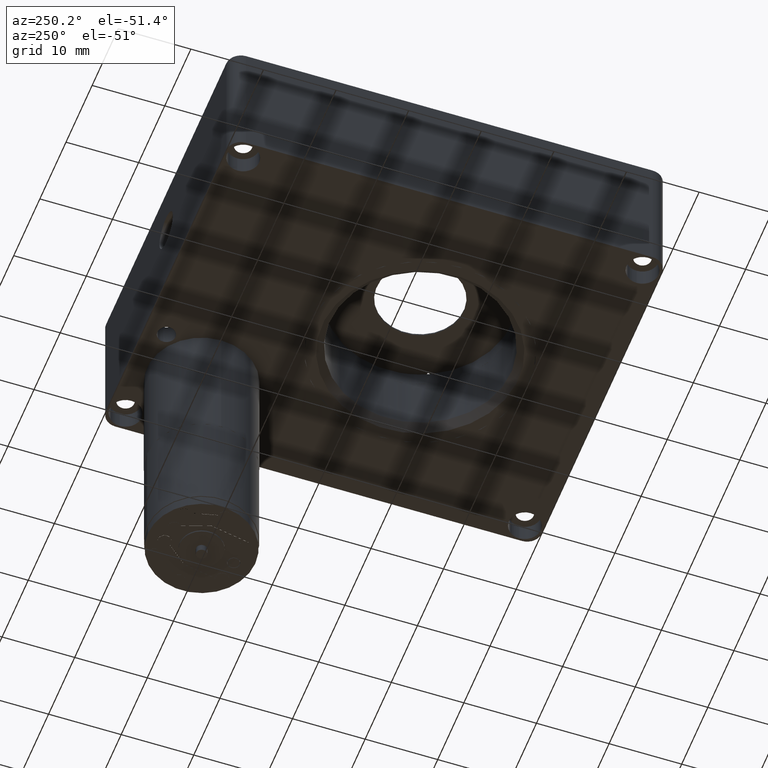
[diagram: clean part render]
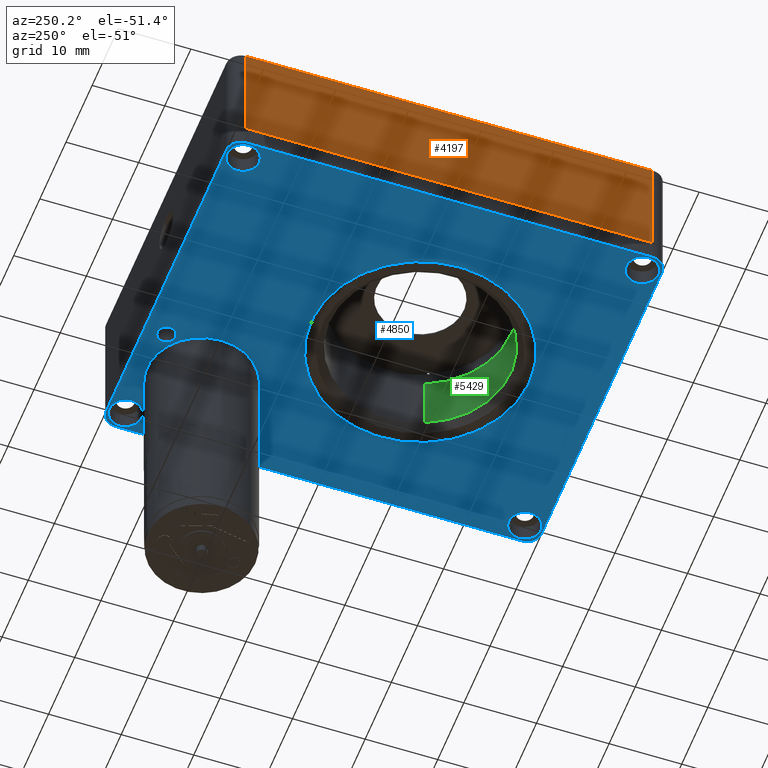
[diagram: same view with three faces highlighted in distinct colors, each labeled with its STEP entity id]
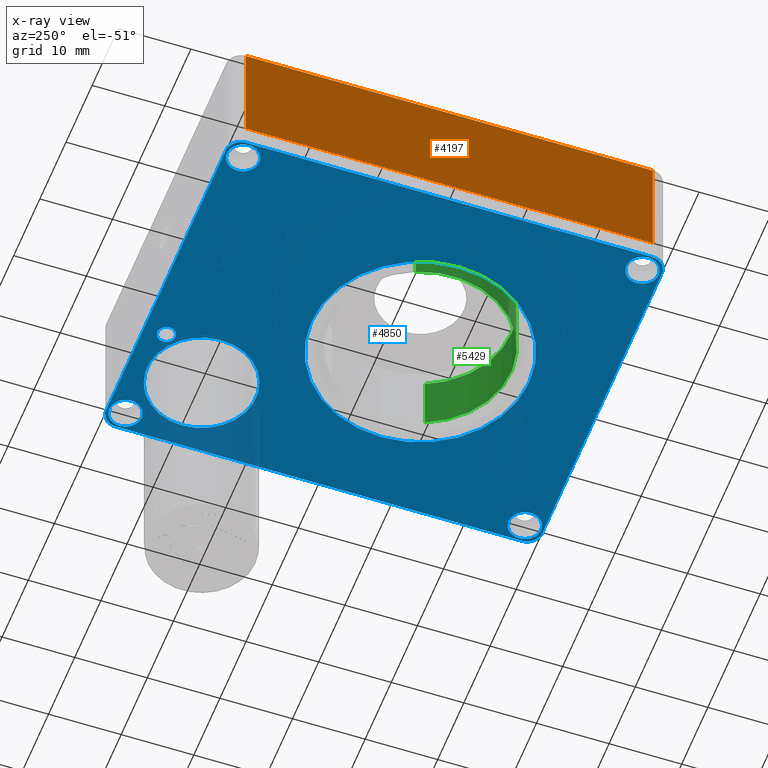
[diagram: x-ray of the same camera — body ghosted, the three highlighted faces saturated]
A machine part, auxiliary view with three faces highlighted in distinct colors.
The next image is the same camera in x-ray (body ghosted, the three faces saturated) — at least one of them is partly hidden behind the body in this view.
Their STEP definitions:

[orange] entity #4197 — the highlighted planar face has unit normal (1, 0, 0).
#184 = VERTEX_POINT ( 'NONE', #3064 ) ;
#311 = LINE ( 'NONE', #5721, #6033 ) ;
#624 = ORIENTED_EDGE ( 'NONE', *, *, #5514, .T. ) ;
#771 = EDGE_CURVE ( 'NONE', #3259, #6083, #1174, .T. ) ;
#958 = CARTESIAN_POINT ( 'NONE',  ( 0.0000000000000000000, 0.0000000000000000000, 15.00000000000000000 ) ) ;
#1001 = CARTESIAN_POINT ( 'NONE',  ( 0.0000000000000000000, 0.0000000000000000000, 0.0000000000000000000 ) ) ;
#1009 = CARTESIAN_POINT ( 'NONE',  ( 0.0000000000000000000, 57.99999999999999300, 15.00000000000000000 ) ) ;
#1104 = CARTESIAN_POINT ( 'NONE',  ( 0.0000000000000000000, 2.000000000000000000, 0.0000000000000000000 ) ) ;
#1174 = LINE ( 'NONE', #4286, #4048 ) ;
#1316 = ORIENTED_EDGE ( 'NONE', *, *, #1430, .F. ) ;
#1411 = VERTEX_POINT ( 'NONE', #1675 ) ;
#1430 = EDGE_CURVE ( 'NONE', #184, #6083, #311, .T. ) ;
#1567 = DIRECTION ( 'NONE',  ( -0.0000000000000000000, -1.000000000000000000, -0.0000000000000000000 ) ) ;
#1675 = CARTESIAN_POINT ( 'NONE',  ( 0.0000000000000000000, 57.99999999999999300, 0.0000000000000000000 ) ) ;
#1698 = CARTESIAN_POINT ( 'NONE',  ( 0.0000000000000000000, 2.000000000000000000, 15.00000000000000000 ) ) ;
#2766 = LINE ( 'NONE', #1001, #6949 ) ;
#3064 = CARTESIAN_POINT ( 'NONE',  ( 0.0000000000000000000, 57.99999999999999300, 15.00000000000000000 ) ) ;
#3259 = VERTEX_POINT ( 'NONE', #1104 ) ;
#3322 = DIRECTION ( 'NONE',  ( -0.0000000000000000000, -0.0000000000000000000, 1.000000000000000000 ) ) ;
#3418 = ORIENTED_EDGE ( 'NONE', *, *, #771, .T. ) ;
#3735 = FACE_OUTER_BOUND ( 'NONE', #4145, .T. ) ;
#3844 = DIRECTION ( 'NONE',  ( 0.0000000000000000000, 0.0000000000000000000, -1.000000000000000000 ) ) ;
#4048 = VECTOR ( 'NONE', #3322, 1000.000000000000000 ) ;
#4145 = EDGE_LOOP ( 'NONE', ( #624, #3418, #1316, #4814 ) ) ;
#4197 = ADVANCED_FACE ( 'NONE', ( #3735 ), #4227, .F. ) ;
#4227 = PLANE ( 'NONE',  #5326 ) ;
#4286 = CARTESIAN_POINT ( 'NONE',  ( 0.0000000000000000000, 2.000000000000000000, 15.00000000000000000 ) ) ;
#4303 = DIRECTION ( 'NONE',  ( 1.000000000000000000, 0.0000000000000000000, 0.0000000000000000000 ) ) ;
#4814 = ORIENTED_EDGE ( 'NONE', *, *, #5713, .T. ) ;
#5326 = AXIS2_PLACEMENT_3D ( 'NONE', #958, #4303, #6569 ) ;
#5514 = EDGE_CURVE ( 'NONE', #1411, #3259, #2766, .T. ) ;
#5713 = EDGE_CURVE ( 'NONE', #184, #1411, #5967, .T. ) ;
#5721 = CARTESIAN_POINT ( 'NONE',  ( 0.0000000000000000000, 0.0000000000000000000, 15.00000000000000000 ) ) ;
#5967 = LINE ( 'NONE', #1009, #6860 ) ;
#6033 = VECTOR ( 'NONE', #6080, 1000.000000000000000 ) ;
#6080 = DIRECTION ( 'NONE',  ( -0.0000000000000000000, -1.000000000000000000, -0.0000000000000000000 ) ) ;
#6083 = VERTEX_POINT ( 'NONE', #1698 ) ;
#6569 = DIRECTION ( 'NONE',  ( 0.0000000000000000000, 0.0000000000000000000, -1.000000000000000000 ) ) ;
#6860 = VECTOR ( 'NONE', #3844, 1000.000000000000000 ) ;
#6949 = VECTOR ( 'NONE', #1567, 1000.000000000000000 ) ;

[blue] entity #4850 — the highlighted planar face has unit normal (0, -0, 1).
#16 = CARTESIAN_POINT ( 'NONE',  ( 39.39999999999982800, 49.94153162899191000, -3.000000000000000000 ) ) ;
#29 = AXIS2_PLACEMENT_3D ( 'NONE', #1120, #3338, #1147 ) ;
#32 = ORIENTED_EDGE ( 'NONE', *, *, #513, .F. ) ;
#49 = LINE ( 'NONE', #486, #7019 ) ;
#62 = DIRECTION ( 'NONE',  ( -0.0000000000000000000, 0.0000000000000000000, -1.000000000000000000 ) ) ;
#74 = EDGE_CURVE ( 'NONE', #5563, #6245, #2848, .T. ) ;
#158 = VERTEX_POINT ( 'NONE', #322 ) ;
#196 = EDGE_LOOP ( 'NONE', ( #4342, #4413 ) ) ;
#236 = CARTESIAN_POINT ( 'NONE',  ( 49.99999999999997200, -3.469446951953614200E-015, -3.000000000000000000 ) ) ;
#279 = ORIENTED_EDGE ( 'NONE', *, *, #764, .F. ) ;
#283 = AXIS2_PLACEMENT_3D ( 'NONE', #6624, #490, #6530 ) ;
#303 = CIRCLE ( 'NONE', #29, 2.000000000000001800 ) ;
#304 = VERTEX_POINT ( 'NONE', #1493 ) ;
#319 = CIRCLE ( 'NONE', #2007, 2.225000000000005000 ) ;
#322 = CARTESIAN_POINT ( 'NONE',  ( 31.89999999999983200, 49.94153162899191000, -3.000000000000000000 ) ) ;
#355 = VERTEX_POINT ( 'NONE', #535 ) ;
#466 = VERTEX_POINT ( 'NONE', #3400 ) ;
#478 = EDGE_CURVE ( 'NONE', #6245, #5563, #3017, .T. ) ;
#486 = CARTESIAN_POINT ( 'NONE',  ( 49.99999999999997200, 60.00000000000000000, -3.000000000000000000 ) ) ;
#490 = DIRECTION ( 'NONE',  ( 0.0000000000000000000, -0.0000000000000000000, 1.000000000000000000 ) ) ;
#495 = AXIS2_PLACEMENT_3D ( 'NONE', #5335, #3265, #5878 ) ;
#513 = EDGE_CURVE ( 'NONE', #2300, #6088, #6389, .T. ) ;
#514 = VERTEX_POINT ( 'NONE', #3928 ) ;
#535 = CARTESIAN_POINT ( 'NONE',  ( 49.72499999999995200, 2.499999999999992500, -3.000000000000000000 ) ) ;
#548 = DIRECTION ( 'NONE',  ( -0.0000000000000000000, -1.000000000000000000, -0.0000000000000000000 ) ) ;
#607 = CARTESIAN_POINT ( 'NONE',  ( 47.99999999999997200, 60.00000000000000000, -3.000000000000000000 ) ) ;
#622 = CARTESIAN_POINT ( 'NONE',  ( 47.99999999999997200, 57.99999999999999300, -3.000000000000000000 ) ) ;
#764 = EDGE_CURVE ( 'NONE', #2680, #6696, #49, .T. ) ;
#822 = CARTESIAN_POINT ( 'NONE',  ( 45.27499999999994200, 2.499999999999992000, -3.000000000000000000 ) ) ;
#825 = EDGE_CURVE ( 'NONE', #5733, #514, #1271, .T. ) ;
#943 = VERTEX_POINT ( 'NONE', #3468 ) ;
#1057 = ORIENTED_EDGE ( 'NONE', *, *, #2685, .F. ) ;
#1084 = DIRECTION ( 'NONE',  ( -1.000000000000000000, -2.081668171172168500E-016, 0.0000000000000000000 ) ) ;
#1120 = CARTESIAN_POINT ( 'NONE',  ( 47.99999999999997200, 1.999999999999994900, -3.000000000000000000 ) ) ;
#1139 = CARTESIAN_POINT ( 'NONE',  ( 49.99999999999997200, 57.99999999999999300, -3.000000000000000000 ) ) ;
#1142 = EDGE_LOOP ( 'NONE', ( #6002, #1057 ) ) ;
#1147 = DIRECTION ( 'NONE',  ( 1.000000000000000000, 0.0000000000000000000, 0.0000000000000000000 ) ) ;
#1192 = DIRECTION ( 'NONE',  ( -0.0000000000000000000, 0.0000000000000000000, -1.000000000000000000 ) ) ;
#1206 = VERTEX_POINT ( 'NONE', #1503 ) ;
#1261 = CIRCLE ( 'NONE', #4979, 2.225000000000005000 ) ;
#1271 = CIRCLE ( 'NONE', #3862, 15.00000000000000000 ) ;
#1282 = AXIS2_PLACEMENT_3D ( 'NONE', #3505, #5090, #3985 ) ;
#1318 = CARTESIAN_POINT ( 'NONE',  ( 0.2750000000000147900, 57.49999999999999300, -3.000000000000000000 ) ) ;
#1319 = DIRECTION ( 'NONE',  ( -1.000000000000000000, 0.0000000000000000000, 0.0000000000000000000 ) ) ;
#1334 = AXIS2_PLACEMENT_3D ( 'NONE', #5162, #1860, #1811 ) ;
#1460 = LINE ( 'NONE', #236, #6398 ) ;
#1493 = CARTESIAN_POINT ( 'NONE',  ( 46.89999999999982800, 49.94153162899191000, -3.000000000000000000 ) ) ;
#1503 = CARTESIAN_POINT ( 'NONE',  ( 49.99999999999997200, 1.999999999999994900, -3.000000000000000000 ) ) ;
#1536 = EDGE_CURVE ( 'NONE', #466, #6419, #2826, .T. ) ;
#1550 = CARTESIAN_POINT ( 'NONE',  ( 39.99999999999997900, 25.00000000000000000, -3.000000000000000000 ) ) ;
#1572 = EDGE_CURVE ( 'NONE', #2680, #2679, #2481, .T. ) ;
#1575 = FACE_BOUND ( 'NONE', #6809, .T. ) ;
#1599 = CIRCLE ( 'NONE', #2365, 1.250000000000001100 ) ;
#1677 = DIRECTION ( 'NONE',  ( 0.0000000000000000000, 0.0000000000000000000, -1.000000000000000000 ) ) ;
#1707 = DIRECTION ( 'NONE',  ( -0.0000000000000000000, -0.0000000000000000000, -1.000000000000000000 ) ) ;
#1725 = VECTOR ( 'NONE', #3049, 1000.000000000000000 ) ;
#1747 = FACE_BOUND ( 'NONE', #6527, .T. ) ;
#1753 = AXIS2_PLACEMENT_3D ( 'NONE', #6078, #2117, #4339 ) ;
#1766 = CARTESIAN_POINT ( 'NONE',  ( 4.725000000000017400, 57.49999999999999300, -3.000000000000000000 ) ) ;
#1802 = VERTEX_POINT ( 'NONE', #5706 ) ;
#1811 = DIRECTION ( 'NONE',  ( -1.000000000000000000, 0.0000000000000000000, 0.0000000000000000000 ) ) ;
#1831 = EDGE_CURVE ( 'NONE', #943, #1802, #1261, .T. ) ;
#1836 = DIRECTION ( 'NONE',  ( -0.0000000000000000000, -0.0000000000000000000, -1.000000000000000000 ) ) ;
#1850 = ORIENTED_EDGE ( 'NONE', *, *, #5124, .T. ) ;
#1860 = DIRECTION ( 'NONE',  ( 0.0000000000000000000, 0.0000000000000000000, -1.000000000000000000 ) ) ;
#1916 = FACE_OUTER_BOUND ( 'NONE', #4070, .T. ) ;
#1921 = ORIENTED_EDGE ( 'NONE', *, *, #2866, .F. ) ;
#1927 = VERTEX_POINT ( 'NONE', #2674 ) ;
#1932 = VERTEX_POINT ( 'NONE', #3815 ) ;
#1950 = CIRCLE ( 'NONE', #1282, 1.250000000000001100 ) ;
#2007 = AXIS2_PLACEMENT_3D ( 'NONE', #2219, #3339, #3881 ) ;
#2082 = ORIENTED_EDGE ( 'NONE', *, *, #6552, .F. ) ;
#2102 = EDGE_CURVE ( 'NONE', #1206, #5953, #303, .T. ) ;
#2111 = AXIS2_PLACEMENT_3D ( 'NONE', #3955, #5085, #5057 ) ;
#2117 = DIRECTION ( 'NONE',  ( -0.0000000000000000000, -0.0000000000000000000, -1.000000000000000000 ) ) ;
#2219 = CARTESIAN_POINT ( 'NONE',  ( 47.49999999999994300, 57.49999999999999300, -3.000000000000000000 ) ) ;
#2224 = CARTESIAN_POINT ( 'NONE',  ( 47.49999999999994300, 2.499999999999992000, -3.000000000000000000 ) ) ;
#2242 = EDGE_CURVE ( 'NONE', #1932, #5455, #1950, .T. ) ;
#2257 = CARTESIAN_POINT ( 'NONE',  ( 24.99999999999998200, 24.99999999999999600, -3.000000000000000000 ) ) ;
#2300 = VERTEX_POINT ( 'NONE', #1318 ) ;
#2350 = VERTEX_POINT ( 'NONE', #822 ) ;
#2357 = FACE_BOUND ( 'NONE', #1142, .T. ) ;
#2365 = AXIS2_PLACEMENT_3D ( 'NONE', #5083, #5107, #5668 ) ;
#2382 = CARTESIAN_POINT ( 'NONE',  ( 4.725000000000017400, 2.499999999999992500, -3.000000000000000000 ) ) ;
#2477 = EDGE_CURVE ( 'NONE', #6088, #2300, #4883, .T. ) ;
#2481 = CIRCLE ( 'NONE', #5026, 2.000000000000001800 ) ;
#2523 = FACE_BOUND ( 'NONE', #5112, .T. ) ;
#2533 = EDGE_LOOP ( 'NONE', ( #32, #4698 ) ) ;
#2639 = EDGE_CURVE ( 'NONE', #355, #2350, #7083, .T. ) ;
#2674 = CARTESIAN_POINT ( 'NONE',  ( 1.999999999999974000, -1.040834085586084300E-014, -3.000000000000000000 ) ) ;
#2679 = VERTEX_POINT ( 'NONE', #1139 ) ;
#2680 = VERTEX_POINT ( 'NONE', #607 ) ;
#2685 = EDGE_CURVE ( 'NONE', #5455, #1932, #1599, .T. ) ;
#2717 = EDGE_CURVE ( 'NONE', #466, #6696, #3587, .T. ) ;
#2786 = DIRECTION ( 'NONE',  ( 0.0000000000000000000, 0.0000000000000000000, 1.000000000000000000 ) ) ;
#2794 = CARTESIAN_POINT ( 'NONE',  ( 47.49999999999994300, 2.499999999999992000, -3.000000000000000000 ) ) ;
#2826 = LINE ( 'NONE', #6693, #3776 ) ;
#2848 = CIRCLE ( 'NONE', #3911, 2.225000000000001400 ) ;
#2864 = CIRCLE ( 'NONE', #5517, 15.00000000000000000 ) ;
#2866 = EDGE_CURVE ( 'NONE', #158, #304, #6094, .T. ) ;
#2874 = DIRECTION ( 'NONE',  ( 0.0000000000000000000, 0.0000000000000000000, 1.000000000000000000 ) ) ;
#2896 = CIRCLE ( 'NONE', #1334, 7.500000000000000000 ) ;
#2943 = LINE ( 'NONE', #4610, #1725 ) ;
#2972 = EDGE_CURVE ( 'NONE', #304, #158, #2896, .T. ) ;
#3017 = CIRCLE ( 'NONE', #2111, 2.225000000000001400 ) ;
#3049 = DIRECTION ( 'NONE',  ( 0.0000000000000000000, 1.000000000000000000, 0.0000000000000000000 ) ) ;
#3050 = ORIENTED_EDGE ( 'NONE', *, *, #4313, .F. ) ;
#3265 = DIRECTION ( 'NONE',  ( -0.0000000000000000000, 0.0000000000000000000, -1.000000000000000000 ) ) ;
#3338 = DIRECTION ( 'NONE',  ( -0.0000000000000000000, 0.0000000000000000000, -1.000000000000000000 ) ) ;
#3339 = DIRECTION ( 'NONE',  ( -0.0000000000000000000, -0.0000000000000000000, -1.000000000000000000 ) ) ;
#3376 = DIRECTION ( 'NONE',  ( -1.000000000000000000, 0.0000000000000000000, 0.0000000000000000000 ) ) ;
#3378 = DIRECTION ( 'NONE',  ( -1.000000000000000000, 0.0000000000000000000, 0.0000000000000000000 ) ) ;
#3392 = DIRECTION ( 'NONE',  ( 1.000000000000000000, 0.0000000000000000000, 0.0000000000000000000 ) ) ;
#3394 = FACE_BOUND ( 'NONE', #196, .T. ) ;
#3400 = CARTESIAN_POINT ( 'NONE',  ( -2.775557561562891400E-014, 57.99999999999999300, -3.000000000000000000 ) ) ;
#3433 = ORIENTED_EDGE ( 'NONE', *, *, #1536, .F. ) ;
#3468 = CARTESIAN_POINT ( 'NONE',  ( 49.72499999999995200, 57.49999999999999300, -3.000000000000000000 ) ) ;
#3476 = FACE_BOUND ( 'NONE', #2533, .T. ) ;
#3479 = EDGE_LOOP ( 'NONE', ( #1850, #3885 ) ) ;
#3505 = CARTESIAN_POINT ( 'NONE',  ( 33.39999999999983500, 56.94153162899191000, -3.000000000000000000 ) ) ;
#3518 = ORIENTED_EDGE ( 'NONE', *, *, #2717, .T. ) ;
#3575 = ORIENTED_EDGE ( 'NONE', *, *, #6001, .F. ) ;
#3587 = CIRCLE ( 'NONE', #495, 2.000000000000000000 ) ;
#3612 = CIRCLE ( 'NONE', #6702, 2.000000000000000000 ) ;
#3716 = CARTESIAN_POINT ( 'NONE',  ( 34.64999999999983500, 56.94153162899191000, -3.000000000000000000 ) ) ;
#3719 = DIRECTION ( 'NONE',  ( -1.000000000000000000, 0.0000000000000000000, 0.0000000000000000000 ) ) ;
#3776 = VECTOR ( 'NONE', #548, 1000.000000000000000 ) ;
#3791 = DIRECTION ( 'NONE',  ( -1.000000000000000000, 0.0000000000000000000, 0.0000000000000000000 ) ) ;
#3815 = CARTESIAN_POINT ( 'NONE',  ( 32.14999999999982800, 56.94153162899191000, -3.000000000000000000 ) ) ;
#3862 = AXIS2_PLACEMENT_3D ( 'NONE', #2257, #2786, #5542 ) ;
#3881 = DIRECTION ( 'NONE',  ( -1.000000000000000000, 0.0000000000000000000, 0.0000000000000000000 ) ) ;
#3885 = ORIENTED_EDGE ( 'NONE', *, *, #825, .T. ) ;
#3911 = AXIS2_PLACEMENT_3D ( 'NONE', #5139, #1836, #1319 ) ;
#3928 = CARTESIAN_POINT ( 'NONE',  ( 9.999999999999980500, 24.99999999999999600, -3.000000000000000000 ) ) ;
#3955 = CARTESIAN_POINT ( 'NONE',  ( 2.500000000000016000, 2.499999999999992000, -3.000000000000000000 ) ) ;
#3985 = DIRECTION ( 'NONE',  ( -1.000000000000000000, 0.0000000000000000000, 0.0000000000000000000 ) ) ;
#4070 = EDGE_LOOP ( 'NONE', ( #3575, #6854, #5086, #4155, #3433, #3518, #279, #6477 ) ) ;
#4073 = AXIS2_PLACEMENT_3D ( 'NONE', #2794, #1707, #3376 ) ;
#4155 = ORIENTED_EDGE ( 'NONE', *, *, #6889, .T. ) ;
#4161 = FACE_BOUND ( 'NONE', #3479, .T. ) ;
#4176 = DIRECTION ( 'NONE',  ( -0.0000000000000000000, -0.0000000000000000000, -1.000000000000000000 ) ) ;
#4277 = CARTESIAN_POINT ( 'NONE',  ( -2.775557561562891400E-014, 1.999999999999988000, -3.000000000000000000 ) ) ;
#4313 = EDGE_CURVE ( 'NONE', #2350, #355, #6694, .T. ) ;
#4339 = DIRECTION ( 'NONE',  ( -1.000000000000000000, 0.0000000000000000000, 0.0000000000000000000 ) ) ;
#4342 = ORIENTED_EDGE ( 'NONE', *, *, #74, .F. ) ;
#4413 = ORIENTED_EDGE ( 'NONE', *, *, #478, .F. ) ;
#4419 = DIRECTION ( 'NONE',  ( 1.000000000000000000, 0.0000000000000000000, 0.0000000000000000000 ) ) ;
#4580 = CARTESIAN_POINT ( 'NONE',  ( 24.99999999999998200, 24.99999999999999600, -3.000000000000000000 ) ) ;
#4589 = DIRECTION ( 'NONE',  ( 1.000000000000000000, 1.387778780781445700E-016, -0.0000000000000000000 ) ) ;
#4610 = CARTESIAN_POINT ( 'NONE',  ( 49.99999999999997200, -3.469446951953614200E-015, -3.000000000000000000 ) ) ;
#4698 = ORIENTED_EDGE ( 'NONE', *, *, #2477, .F. ) ;
#4784 = CARTESIAN_POINT ( 'NONE',  ( 47.49999999999994300, 57.49999999999999300, -3.000000000000000000 ) ) ;
#4850 = ADVANCED_FACE ( 'NONE', ( #2523, #2357, #1575, #3394, #1747, #1916, #4161, #3476 ), #6554, .F. ) ;
#4883 = CIRCLE ( 'NONE', #1753, 2.225000000000001400 ) ;
#4979 = AXIS2_PLACEMENT_3D ( 'NONE', #4784, #4176, #3719 ) ;
#4985 = CARTESIAN_POINT ( 'NONE',  ( 1.999999999999974000, 1.999999999999988000, -3.000000000000000000 ) ) ;
#5026 = AXIS2_PLACEMENT_3D ( 'NONE', #622, #62, #3392 ) ;
#5057 = DIRECTION ( 'NONE',  ( -1.000000000000000000, 0.0000000000000000000, 0.0000000000000000000 ) ) ;
#5083 = CARTESIAN_POINT ( 'NONE',  ( 33.39999999999983500, 56.94153162899191000, -3.000000000000000000 ) ) ;
#5085 = DIRECTION ( 'NONE',  ( -0.0000000000000000000, -0.0000000000000000000, -1.000000000000000000 ) ) ;
#5086 = ORIENTED_EDGE ( 'NONE', *, *, #6164, .F. ) ;
#5090 = DIRECTION ( 'NONE',  ( 0.0000000000000000000, 0.0000000000000000000, -1.000000000000000000 ) ) ;
#5107 = DIRECTION ( 'NONE',  ( 0.0000000000000000000, 0.0000000000000000000, -1.000000000000000000 ) ) ;
#5112 = EDGE_LOOP ( 'NONE', ( #1921, #5858 ) ) ;
#5124 = EDGE_CURVE ( 'NONE', #514, #5733, #2864, .T. ) ;
#5139 = CARTESIAN_POINT ( 'NONE',  ( 2.500000000000016000, 2.499999999999992000, -3.000000000000000000 ) ) ;
#5162 = CARTESIAN_POINT ( 'NONE',  ( 39.39999999999982800, 49.94153162899191000, -3.000000000000000000 ) ) ;
#5245 = CARTESIAN_POINT ( 'NONE',  ( 47.99999999999997200, -3.469446951953614200E-015, -3.000000000000000000 ) ) ;
#5335 = CARTESIAN_POINT ( 'NONE',  ( 1.999999999999974000, 57.99999999999999300, -3.000000000000000000 ) ) ;
#5362 = CARTESIAN_POINT ( 'NONE',  ( 1.999999999999974000, 59.99999999999998600, -3.000000000000000000 ) ) ;
#5455 = VERTEX_POINT ( 'NONE', #3716 ) ;
#5517 = AXIS2_PLACEMENT_3D ( 'NONE', #4580, #2874, #6757 ) ;
#5542 = DIRECTION ( 'NONE',  ( 1.000000000000000000, 0.0000000000000000000, 0.0000000000000000000 ) ) ;
#5563 = VERTEX_POINT ( 'NONE', #5835 ) ;
#5668 = DIRECTION ( 'NONE',  ( -1.000000000000000000, 0.0000000000000000000, 0.0000000000000000000 ) ) ;
#5706 = CARTESIAN_POINT ( 'NONE',  ( 45.27499999999994200, 57.49999999999999300, -3.000000000000000000 ) ) ;
#5733 = VERTEX_POINT ( 'NONE', #1550 ) ;
#5835 = CARTESIAN_POINT ( 'NONE',  ( 0.2750000000000147900, 2.499999999999992000, -3.000000000000000000 ) ) ;
#5858 = ORIENTED_EDGE ( 'NONE', *, *, #2972, .F. ) ;
#5878 = DIRECTION ( 'NONE',  ( 1.000000000000000000, 0.0000000000000000000, 0.0000000000000000000 ) ) ;
#5953 = VERTEX_POINT ( 'NONE', #5245 ) ;
#6001 = EDGE_CURVE ( 'NONE', #1206, #2679, #2943, .T. ) ;
#6002 = ORIENTED_EDGE ( 'NONE', *, *, #2242, .F. ) ;
#6032 = AXIS2_PLACEMENT_3D ( 'NONE', #2224, #7216, #3791 ) ;
#6078 = CARTESIAN_POINT ( 'NONE',  ( 2.500000000000016000, 57.49999999999999300, -3.000000000000000000 ) ) ;
#6088 = VERTEX_POINT ( 'NONE', #1766 ) ;
#6090 = DIRECTION ( 'NONE',  ( -1.000000000000000000, 0.0000000000000000000, 0.0000000000000000000 ) ) ;
#6094 = CIRCLE ( 'NONE', #6203, 7.500000000000000000 ) ;
#6148 = DIRECTION ( 'NONE',  ( -0.0000000000000000000, -0.0000000000000000000, -1.000000000000000000 ) ) ;
#6164 = EDGE_CURVE ( 'NONE', #1927, #5953, #1460, .T. ) ;
#6203 = AXIS2_PLACEMENT_3D ( 'NONE', #16, #1677, #6090 ) ;
#6245 = VERTEX_POINT ( 'NONE', #2382 ) ;
#6389 = CIRCLE ( 'NONE', #6959, 2.225000000000001400 ) ;
#6398 = VECTOR ( 'NONE', #4589, 1000.000000000000000 ) ;
#6419 = VERTEX_POINT ( 'NONE', #4277 ) ;
#6477 = ORIENTED_EDGE ( 'NONE', *, *, #1572, .T. ) ;
#6527 = EDGE_LOOP ( 'NONE', ( #3050, #6595 ) ) ;
#6530 = DIRECTION ( 'NONE',  ( 1.000000000000000000, 0.0000000000000000000, -0.0000000000000000000 ) ) ;
#6552 = EDGE_CURVE ( 'NONE', #1802, #943, #319, .T. ) ;
#6554 = PLANE ( 'NONE',  #283 ) ;
#6595 = ORIENTED_EDGE ( 'NONE', *, *, #2639, .F. ) ;
#6624 = CARTESIAN_POINT ( 'NONE',  ( 24.99999999999998200, 29.99999999999999300, -3.000000000000000000 ) ) ;
#6693 = CARTESIAN_POINT ( 'NONE',  ( -2.775557561562891400E-014, -1.040834085586084300E-014, -3.000000000000000000 ) ) ;
#6694 = CIRCLE ( 'NONE', #6032, 2.225000000000005000 ) ;
#6696 = VERTEX_POINT ( 'NONE', #5362 ) ;
#6702 = AXIS2_PLACEMENT_3D ( 'NONE', #4985, #1192, #4419 ) ;
#6753 = CARTESIAN_POINT ( 'NONE',  ( 2.500000000000016000, 57.49999999999999300, -3.000000000000000000 ) ) ;
#6757 = DIRECTION ( 'NONE',  ( 1.000000000000000000, 0.0000000000000000000, 0.0000000000000000000 ) ) ;
#6772 = ORIENTED_EDGE ( 'NONE', *, *, #1831, .F. ) ;
#6809 = EDGE_LOOP ( 'NONE', ( #2082, #6772 ) ) ;
#6854 = ORIENTED_EDGE ( 'NONE', *, *, #2102, .T. ) ;
#6889 = EDGE_CURVE ( 'NONE', #1927, #6419, #3612, .T. ) ;
#6959 = AXIS2_PLACEMENT_3D ( 'NONE', #6753, #6148, #3378 ) ;
#7019 = VECTOR ( 'NONE', #1084, 1000.000000000000000 ) ;
#7083 = CIRCLE ( 'NONE', #4073, 2.225000000000005000 ) ;
#7216 = DIRECTION ( 'NONE',  ( -0.0000000000000000000, -0.0000000000000000000, -1.000000000000000000 ) ) ;

[green] entity #5429 — the highlighted cylindrical surface (partial cylindrical patch) has radius 12.5 mm, axis along (-0, -0, -1).
#139 = DIRECTION ( 'NONE',  ( -6.938893903907228400E-018, -2.775557561562891400E-017, -1.000000000000000000 ) ) ;
#484 = LINE ( 'NONE', #6766, #1350 ) ;
#813 = VERTEX_POINT ( 'NONE', #6670 ) ;
#1164 = LINE ( 'NONE', #3853, #2473 ) ;
#1350 = VECTOR ( 'NONE', #139, 1000.000000000000000 ) ;
#1478 = CARTESIAN_POINT ( 'NONE',  ( 25.00000000000000000, 25.00000000000000000, -1.999999999999983600 ) ) ;
#1626 = EDGE_CURVE ( 'NONE', #2352, #3114, #484, .T. ) ;
#1993 = CARTESIAN_POINT ( 'NONE',  ( 36.54273483717102500, 20.20257647494424400, -1.999999999999983600 ) ) ;
#1999 = ORIENTED_EDGE ( 'NONE', *, *, #1626, .T. ) ;
#2215 = EDGE_CURVE ( 'NONE', #6545, #2352, #4890, .T. ) ;
#2352 = VERTEX_POINT ( 'NONE', #5259 ) ;
#2396 = CARTESIAN_POINT ( 'NONE',  ( 25.00000000000000000, 25.00000000000000000, 6.000000000000002700 ) ) ;
#2473 = VECTOR ( 'NONE', #3304, 1000.000000000000000 ) ;
#2535 = AXIS2_PLACEMENT_3D ( 'NONE', #2396, #6833, #3480 ) ;
#2558 = EDGE_CURVE ( 'NONE', #6545, #813, #1164, .T. ) ;
#2563 = DIRECTION ( 'NONE',  ( -6.938893903907228400E-018, -2.775557561562891400E-017, -1.000000000000000000 ) ) ;
#2618 = CIRCLE ( 'NONE', #5281, 12.50000000000000200 ) ;
#3114 = VERTEX_POINT ( 'NONE', #1993 ) ;
#3241 = DIRECTION ( 'NONE',  ( -0.9234187869736817400, 0.3837938820044609100, 0.0000000000000000000 ) ) ;
#3284 = CARTESIAN_POINT ( 'NONE',  ( 13.45726516282897700, 29.79742352505576300, 6.000000000000002700 ) ) ;
#3304 = DIRECTION ( 'NONE',  ( -6.938893903907228400E-018, -2.775557561562891400E-017, -1.000000000000000000 ) ) ;
#3480 = DIRECTION ( 'NONE',  ( 0.9234187869736818500, -0.3837938820044609100, 0.0000000000000000000 ) ) ;
#3749 = DIRECTION ( 'NONE',  ( -6.938893903907228400E-018, -2.775557561562891400E-017, -1.000000000000000000 ) ) ;
#3853 = CARTESIAN_POINT ( 'NONE',  ( 13.45726516282897700, 29.79742352505576300, 6.000000000000002700 ) ) ;
#4224 = EDGE_CURVE ( 'NONE', #3114, #813, #2618, .T. ) ;
#4436 = ORIENTED_EDGE ( 'NONE', *, *, #2215, .T. ) ;
#4490 = FACE_OUTER_BOUND ( 'NONE', #5777, .T. ) ;
#4890 = CIRCLE ( 'NONE', #2535, 12.50000000000000200 ) ;
#5259 = CARTESIAN_POINT ( 'NONE',  ( 36.54273483717102500, 20.20257647494424400, 6.000000000000002700 ) ) ;
#5281 = AXIS2_PLACEMENT_3D ( 'NONE', #1478, #3749, #3241 ) ;
#5429 = ADVANCED_FACE ( 'NONE', ( #4490 ), #5794, .F. ) ;
#5777 = EDGE_LOOP ( 'NONE', ( #4436, #1999, #6489, #5881 ) ) ;
#5794 = CYLINDRICAL_SURFACE ( 'NONE', #5853, 12.50000000000000200 ) ;
#5853 = AXIS2_PLACEMENT_3D ( 'NONE', #6455, #2563, #6432 ) ;
#5881 = ORIENTED_EDGE ( 'NONE', *, *, #2558, .F. ) ;
#6432 = DIRECTION ( 'NONE',  ( -0.9234187869736817400, 0.3837938820044609100, 0.0000000000000000000 ) ) ;
#6455 = CARTESIAN_POINT ( 'NONE',  ( 25.00000000000000000, 25.00000000000000000, 6.000000000000002700 ) ) ;
#6489 = ORIENTED_EDGE ( 'NONE', *, *, #4224, .T. ) ;
#6545 = VERTEX_POINT ( 'NONE', #3284 ) ;
#6670 = CARTESIAN_POINT ( 'NONE',  ( 13.45726516282897700, 29.79742352505576300, -1.999999999999983600 ) ) ;
#6766 = CARTESIAN_POINT ( 'NONE',  ( 36.54273483717102500, 20.20257647494424400, 6.000000000000002700 ) ) ;
#6833 = DIRECTION ( 'NONE',  ( 6.938893903907228400E-018, 2.775557561562891400E-017, 1.000000000000000000 ) ) ;